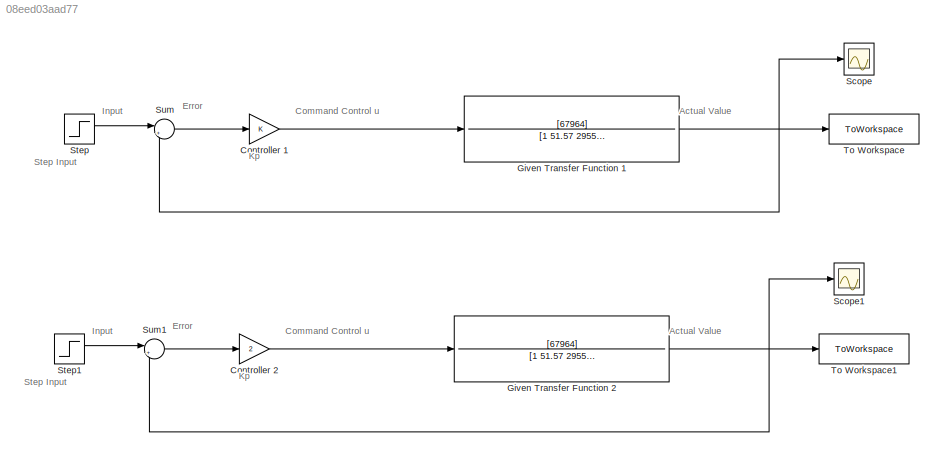
MODEL slx_08eed03aad77
KIND model
CONFIG AbsTol = auto
CONFIG EnableMultiTasking = off
CONFIG FixedStep = auto
CONFIG MaxStep = auto
CONFIG MinStep = auto
CONFIG RelTol = 1e-9
CONFIG SampleTimeConstraint = Unconstrained
CONFIG SolverName = VariableStepAuto
CONFIG StartTime = 0.0
CONFIG StopTime = 2
BLOCK [Gain] Controller 1
  NameLocation = top
BLOCK [Gain] Controller 2
  Gain = 2
  NameLocation = top
BLOCK [TransferFcn] Given Transfer Function 1
  Denominator = [1 51.57 29550]
  Numerator = [67964]
BLOCK [TransferFcn] Given Transfer Function 2
  Denominator = [1 51.57 29550]
  Numerator = [67964]
BLOCK [Scope] Scope
  Floating = off
  NumInputPorts = 1
  ScopeSpecificationString = Simulink.scopes.TimeScopeBlockCfg('CurrentConfiguration', extmgr.ConfigurationSet(extmgr.Configuration('Core','General UI',true),extmgr.Configuration('Core','Source UI',true),extmgr.Configuration('Sources','WiredSimulink',true),extmgr.Configuration('Visuals','Time Domain',true,'SerializedDisplays',{struct('MinYLimReal','-0.15427','MaxYLimReal','1.38842','YLabelReal','','MinYLimMag','0.00000','MaxY...<+1363ch>
BLOCK [Scope] Scope1
  Floating = off
  NumInputPorts = 1
  ScopeSpecificationString = Simulink.scopes.TimeScopeBlockCfg('CurrentConfiguration', extmgr.ConfigurationSet(extmgr.Configuration('Core','General UI',true),extmgr.Configuration('Core','Source UI',true),extmgr.Configuration('Sources','WiredSimulink',true,'DataLoggingVariableName','ScopeData1'),extmgr.Configuration('Visuals','Time Domain',true,'SerializedDisplays',{struct('MinYLimReal','-0.15418','MaxYLimReal','1.38765','YLab...<+1402ch>
BLOCK [Step] Step
  SampleTime = 0
BLOCK [Step] Step1
  SampleTime = 0
BLOCK [Sum] Sum
  Inputs = |+-
BLOCK [Sum] Sum1
  Inputs = |+-
BLOCK [ToWorkspace] To Workspace
  FixptAsFi = on
  MaxDataPoints = inf
  SampleTime = -1
  VariableName = p1
BLOCK [ToWorkspace] To Workspace1
  FixptAsFi = on
  MaxDataPoints = inf
  SampleTime = -1
  VariableName = p2
ANNOTATION (root): Actual Value
ANNOTATION (root): Command Control u
ANNOTATION (root): Error
ANNOTATION (root): Input
ANNOTATION (root): Kp
ANNOTATION (root): Step Input
LINE Controller 1:1 -> Given Transfer Function 1:1
LINE Controller 2:1 -> Given Transfer Function 2:1
NET Given Transfer Function 1:1 -> Scope:1, Sum:2, To Workspace:1
NET Given Transfer Function 2:1 -> Scope1:1, Sum1:2, To Workspace1:1
LINE Step1:1 -> Sum1:1
LINE Step:1 -> Sum:1
LINE Sum1:1 -> Controller 2:1
LINE Sum:1 -> Controller 1:1
note: NET lines group one-source signal fan-out (src -> all destinations, sorted); 1:1 wires keep LINE
